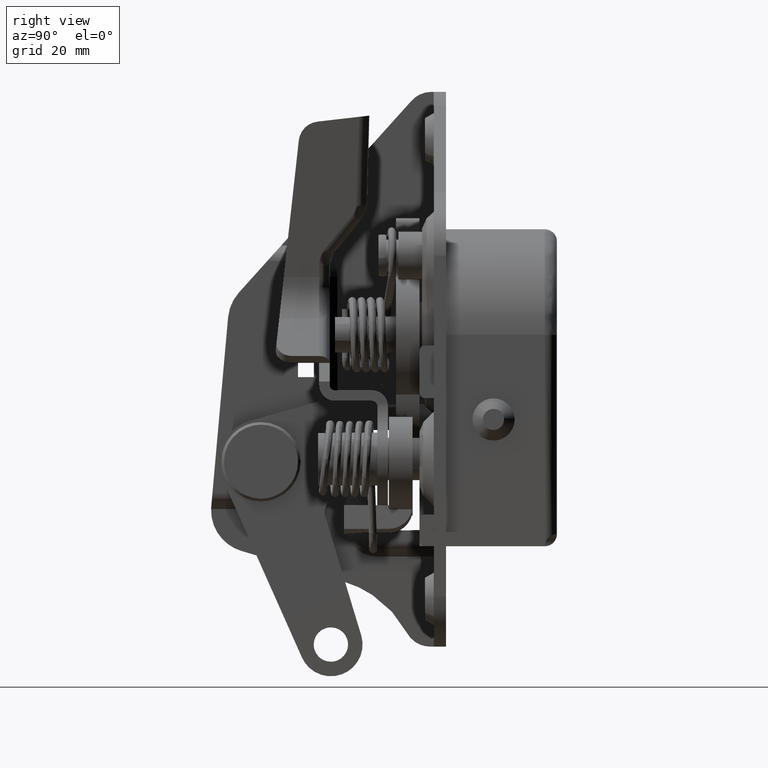
[diagram: clean part render]
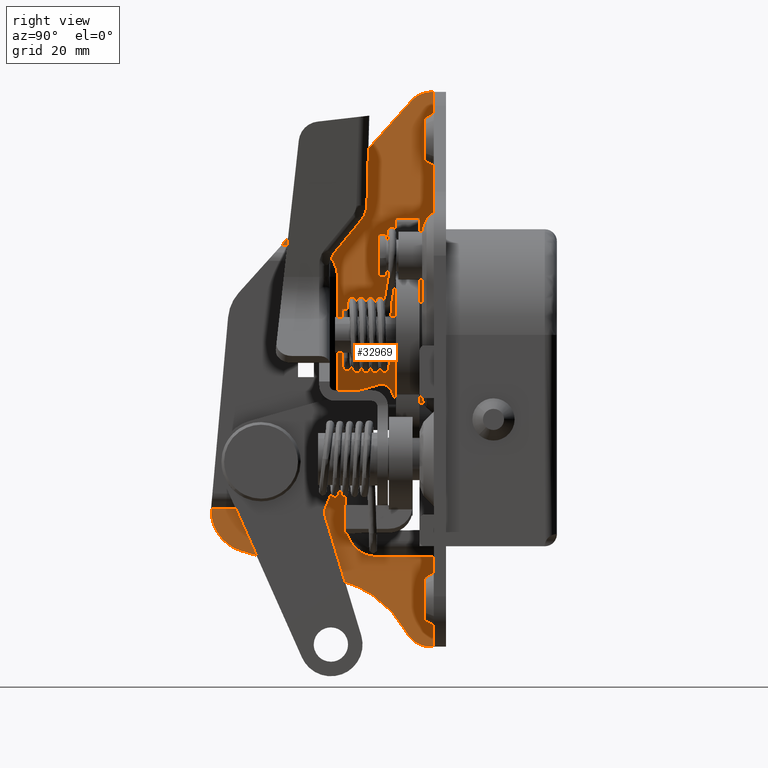
[diagram: same view with one face highlighted and labeled with its STEP entity id]
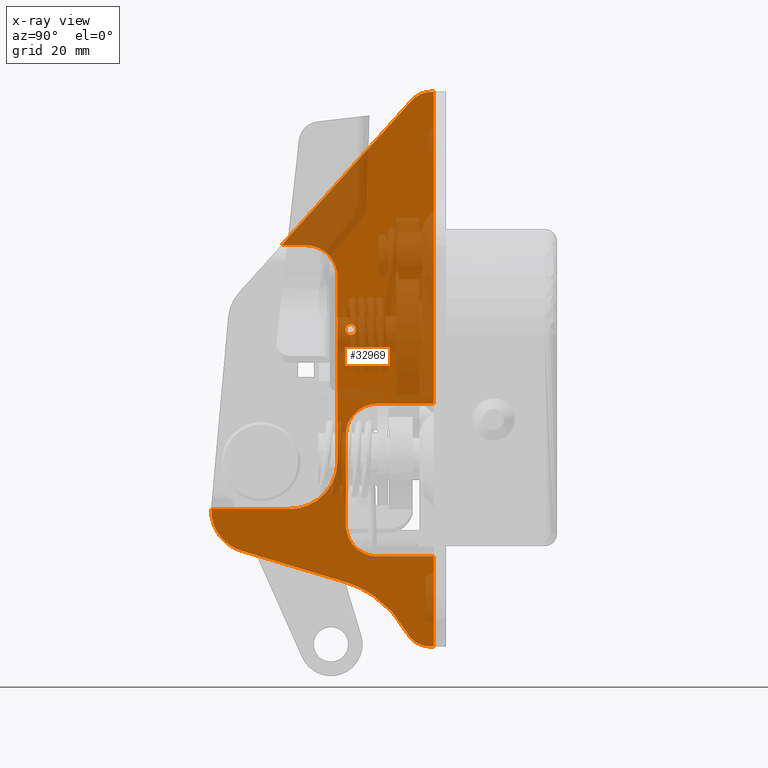
[diagram: x-ray of the same camera — body ghosted, the highlighted face saturated]
A machine part, right view. The second image highlights one B-rep face of the part: STEP entity #32969.
The next image is the same camera in x-ray: the body ghosted, the highlighted face saturated — about 41% of this face is hidden behind the body in this view.
In plain terms, the highlighted face is a freeform B-spline surface patch.
Its self-contained STEP definition (entity closure, byte-faithful):
#27227=CARTESIAN_POINT('',(2.299999999999970,17.0,26.0));
#27228=VERTEX_POINT('',#27227);
#27229=CARTESIAN_POINT('',(2.299999999983885,16.283349328471090,25.697431333616240));
#27230=VERTEX_POINT('',#27229);
#27231=CARTESIAN_POINT('',(2.299999999999970,17.0,26.0));
#27232=CARTESIAN_POINT('',(2.299999999997160,16.875137434751529,26.000108884264030));
#27233=CARTESIAN_POINT('',(2.299999999991206,16.608890082169431,25.949463115152192));
#27234=CARTESIAN_POINT('',(2.299999999986095,16.381917068576680,25.798963537486191));
#27235=CARTESIAN_POINT('',(2.299999999983885,16.283349328471090,25.697431333616240));
#27236=B_SPLINE_CURVE_WITH_KNOTS('',3,(#27231,#27232,#27233,#27234,#27235),.UNSPECIFIED.,.F.,.U.,(4,1,4),(0.000000076723321,0.374556873993050,0.799009194803175),.UNSPECIFIED.);
#27237=EDGE_CURVE('',#27228,#27230,#27236,.T.);
#27292=CARTESIAN_POINT('',(2.300000000027888,16.262722093398288,24.324409418595000));
#27293=VERTEX_POINT('',#27292);
#27299=CARTESIAN_POINT('',(2.299999999999970,17.0,24.0));
#27300=VERTEX_POINT('',#27299);
#27301=CARTESIAN_POINT('',(2.300000000027888,16.262722093398288,24.324409418595000));
#27302=CARTESIAN_POINT('',(2.300000000024140,16.361762973293299,24.216004253060419));
#27303=CARTESIAN_POINT('',(2.300000000015330,16.594207752549021,24.054467457854070));
#27304=CARTESIAN_POINT('',(2.300000000004878,16.870441349285201,23.999883512411412));
#27305=CARTESIAN_POINT('',(2.299999999999970,17.0,24.0));
#27306=B_SPLINE_CURVE_WITH_KNOTS('',3,(#27301,#27302,#27303,#27304,#27305),.UNSPECIFIED.,.F.,.U.,(4,1,4),(0.000000073293663,0.440417392098690,0.829054961482361),.UNSPECIFIED.);
#27307=EDGE_CURVE('',#27293,#27300,#27306,.T.);
#27309=CARTESIAN_POINT('',(2.299999999999970,17.999999999996358,25.000002700771301));
#27310=VERTEX_POINT('',#27309);
#27311=CARTESIAN_POINT('',(2.299999999999970,17.0,24.0));
#27312=CARTESIAN_POINT('',(2.299999999999963,17.122736333625610,23.999889343013368));
#27313=CARTESIAN_POINT('',(2.299999999999985,17.327170617699501,24.038160849404779));
#27314=CARTESIAN_POINT('',(2.299999999999963,17.625305952941570,24.197411173478500));
#27315=CARTESIAN_POINT('',(2.299999999999962,17.843834262327459,24.426898267956751));
#27316=CARTESIAN_POINT('',(2.299999999999980,17.974435839994499,24.721856909492370));
#27317=CARTESIAN_POINT('',(2.299999999999967,18.000024125343192,24.910012288192210));
#27318=CARTESIAN_POINT('',(2.299999999999970,17.999999999996358,25.000002700771301));
#27319=B_SPLINE_CURVE_WITH_KNOTS('',3,(#27311,#27312,#27313,#27314,#27315,#27316,#27317,#27318),.UNSPECIFIED.,.F.,.U.,(4,1,1,1,1,4),(0.000000278164679,0.368163901596766,0.613611931807633,1.006310286854506,1.300859443302401,1.570837266627507),.UNSPECIFIED.);
#27320=EDGE_CURVE('',#27300,#27310,#27319,.T.);
#27322=CARTESIAN_POINT('',(2.299999999999970,17.999999999996358,25.000002700771301));
#27323=CARTESIAN_POINT('',(2.299999999999974,18.000112848320640,25.122738762137288));
#27324=CARTESIAN_POINT('',(2.299999999999964,17.961843882105320,25.327180044209911));
#27325=CARTESIAN_POINT('',(2.299999999999978,17.821957639316711,25.588878455707441));
#27326=CARTESIAN_POINT('',(2.299999999999967,17.619718561186961,25.806728343205432));
#27327=CARTESIAN_POINT('',(2.299999999999969,17.335436932095920,25.963164026423929));
#27328=CARTESIAN_POINT('',(2.299999999999970,17.106352691545570,26.000039462947090));
#27329=CARTESIAN_POINT('',(2.299999999999970,17.0,26.0));
#27330=B_SPLINE_CURVE_WITH_KNOTS('',3,(#27322,#27323,#27324,#27325,#27326,#27327,#27328,#27329),.UNSPECIFIED.,.F.,.U.,(4,1,1,1,1,4),(0.000000281844217,0.368163191423545,0.613610741273622,0.883566257270461,1.251766178606309,1.570834222152832),.UNSPECIFIED.);
#27331=EDGE_CURVE('',#27310,#27228,#27330,.T.);
#27350=CARTESIAN_POINT('',(2.299999999999970,16.000000000003649,24.999997299228710));
#27351=VERTEX_POINT('',#27350);
#27352=CARTESIAN_POINT('',(2.299999999983885,16.283349328471090,25.697431333616240));
#27353=CARTESIAN_POINT('',(2.299999999986542,16.170943118919791,25.582360598269879));
#27354=CARTESIAN_POINT('',(2.299999999991806,16.037424386999191,25.353785637122002));
#27355=CARTESIAN_POINT('',(2.299999999997749,15.999987412728119,25.096465588915830));
#27356=CARTESIAN_POINT('',(2.299999999999970,16.000000000003649,24.999997299228710));
#27357=B_SPLINE_CURVE_WITH_KNOTS('',3,(#27352,#27353,#27354,#27355,#27356),.UNSPECIFIED.,.F.,.U.,(4,1,4),(0.000000064618931,0.482385127414503,0.771828755421333),.UNSPECIFIED.);
#27358=EDGE_CURVE('',#27230,#27351,#27357,.T.);
#27360=CARTESIAN_POINT('',(2.299999999999970,16.000000000003649,24.999997299228710));
#27361=CARTESIAN_POINT('',(2.300000000006355,15.999699716883249,24.845399834770920));
#27362=CARTESIAN_POINT('',(2.300000000016570,16.058541153863629,24.598444389026390));
#27363=CARTESIAN_POINT('',(2.300000000025061,16.200064603734361,24.392755436034111));
#27364=CARTESIAN_POINT('',(2.300000000027888,16.262722093398288,24.324409418595000));
#27365=B_SPLINE_CURVE_WITH_KNOTS('',3,(#27360,#27361,#27362,#27363,#27364),.UNSPECIFIED.,.F.,.U.,(4,1,4),(0.000000053008728,0.463604905297128,0.741778974606835),.UNSPECIFIED.);
#27366=EDGE_CURVE('',#27351,#27293,#27365,.T.);
#32480=CARTESIAN_POINT('',(2.299999999999970,-9.450205466200819,-8.952691193458032));
#32481=VERTEX_POINT('',#32480);
#32489=CARTESIAN_POINT('',(2.300000000000000,5.500000000000000,-8.952691193458040));
#32490=VERTEX_POINT('',#32489);
#32491=CARTESIAN_POINT('',(2.300000000000000,5.500000000000000,-8.952691193458040));
#32492=CARTESIAN_POINT('',(2.299999999999970,-9.450205466200819,-8.952691193458032));
#32493=QUASI_UNIFORM_CURVE('',1,(#32491,#32492),.UNSPECIFIED.,.F.,.U.);
#32494=EDGE_CURVE('',#32490,#32481,#32493,.T.);
#32520=CARTESIAN_POINT('',(2.300000000000000,14.452691193458120,8.471695E-014));
#32521=VERTEX_POINT('',#32520);
#32522=CARTESIAN_POINT('',(2.300000000000000,14.452691193458120,8.471695E-014));
#32523=CARTESIAN_POINT('',(2.299999999999992,14.452883619184441,-0.732458501904266));
#32524=CARTESIAN_POINT('',(2.300000000000007,14.312550159141210,-1.867634661970303));
#32525=CARTESIAN_POINT('',(2.299999999999995,13.770169696707120,-3.543980386465062));
#32526=CARTESIAN_POINT('',(2.300000000000004,13.118158995672740,-4.781962294476738));
#32527=CARTESIAN_POINT('',(2.299999999999997,12.140634888896839,-6.066824140129833));
#32528=CARTESIAN_POINT('',(2.300000000000015,11.067700438186280,-7.075804586611912));
#32529=CARTESIAN_POINT('',(2.299999999999965,9.645470770589016,-7.988682510928944));
#32530=CARTESIAN_POINT('',(2.300000000000023,7.843624729170081,-8.735190150772578));
#32531=CARTESIAN_POINT('',(2.299999999999995,6.378965177801363,-8.953052241623057));
#32532=CARTESIAN_POINT('',(2.300000000000000,5.500000000000000,-8.952691193458040));
#32533=B_SPLINE_CURVE_WITH_KNOTS('',3,(#32522,#32523,#32524,#32525,#32526,#32527,#32528,#32529,#32530,#32531,#32532),.UNSPECIFIED.,.F.,.U.,(4,1,1,1,1,1,1,1,4),(0.000000091345063,2.197323560097408,3.405869013751023,5.273619080636292,6.372272558644386,8.239997513723083,9.668260322772001,11.426153740124731,14.062942680058100),.UNSPECIFIED.);
#32534=EDGE_CURVE('',#32521,#32490,#32533,.T.);
#32551=CARTESIAN_POINT('',(2.300000000000000,14.452691193458120,35.0));
#32552=VERTEX_POINT('',#32551);
#32553=CARTESIAN_POINT('',(2.300000000000000,14.452691193458120,35.0));
#32554=CARTESIAN_POINT('',(2.300000000000000,14.452691193458120,8.471695E-014));
#32555=QUASI_UNIFORM_CURVE('',1,(#32553,#32554),.UNSPECIFIED.,.F.,.U.);
#32556=EDGE_CURVE('',#32552,#32521,#32555,.T.);
#32582=CARTESIAN_POINT('',(2.300000000000000,8.500000000000000,40.952691193458101));
#32583=VERTEX_POINT('',#32582);
#32584=CARTESIAN_POINT('',(2.300000000000000,8.500000000000000,40.952691193458101));
#32585=CARTESIAN_POINT('',(2.300000000000004,8.962657714546495,40.952792514132987));
#32586=CARTESIAN_POINT('',(2.299999999999999,9.668758386070717,40.869931609499737));
#32587=CARTESIAN_POINT('',(2.300000000000000,10.742669357838730,40.544165789031979));
#32588=CARTESIAN_POINT('',(2.300000000000001,11.751758665070639,40.044082462251502));
#32589=CARTESIAN_POINT('',(2.299999999999986,12.646898111097959,39.318539184287559));
#32590=CARTESIAN_POINT('',(2.300000000000009,13.390776246527659,38.445361373886563));
#32591=CARTESIAN_POINT('',(2.299999999999996,13.914028476301320,37.560154488678272));
#32592=CARTESIAN_POINT('',(2.300000000000002,14.342136397317050,36.363523898134837));
#32593=CARTESIAN_POINT('',(2.300000000000001,14.452860208361940,35.511368369764973));
#32594=CARTESIAN_POINT('',(2.300000000000000,14.452691193458120,35.0));
#32595=B_SPLINE_CURVE_WITH_KNOTS('',3,(#32584,#32585,#32586,#32587,#32588,#32589,#32590,#32591,#32592,#32593,#32594),.UNSPECIFIED.,.F.,.U.,(4,1,1,1,1,1,1,1,4),(0.000000123463044,1.387947787412965,2.118478463169031,3.360352761034968,4.748272259292785,5.551872501632872,6.793741497036548,7.816471655958068,9.350524131440539),.UNSPECIFIED.);
#32596=EDGE_CURVE('',#32583,#32552,#32595,.T.);
#32613=CARTESIAN_POINT('',(2.300000000000000,3.857822074112355,40.952691193458101));
#32614=VERTEX_POINT('',#32613);
#32615=CARTESIAN_POINT('',(2.300000000000000,3.857822074112355,40.952691193458101));
#32616=CARTESIAN_POINT('',(2.300000000000000,8.500000000000000,40.952691193458101));
#32617=QUASI_UNIFORM_CURVE('',1,(#32615,#32616),.UNSPECIFIED.,.F.,.U.);
#32618=EDGE_CURVE('',#32614,#32583,#32617,.T.);
#32634=CARTESIAN_POINT('',(2.300000000000000,32.700000000000003,10.952691193458120));
#32635=VERTEX_POINT('',#32634);
#32641=CARTESIAN_POINT('',(2.300000000000000,22.0,10.952691193458120));
#32642=VERTEX_POINT('',#32641);
#32643=CARTESIAN_POINT('',(2.300000000000000,22.0,10.952691193458120));
#32644=CARTESIAN_POINT('',(2.300000000000000,32.700000000000003,10.952691193458120));
#32645=QUASI_UNIFORM_CURVE('',1,(#32643,#32644),.UNSPECIFIED.,.F.,.U.);
#32646=EDGE_CURVE('',#32642,#32635,#32645,.T.);
#32672=CARTESIAN_POINT('',(2.300000000000000,16.047308806541899,5.0));
#32673=VERTEX_POINT('',#32672);
#32674=CARTESIAN_POINT('',(2.300000000000000,16.047308806541899,5.0));
#32675=CARTESIAN_POINT('',(2.299999999999999,16.047285205004592,5.365247926158874));
#32676=CARTESIAN_POINT('',(2.299999999999999,16.121440009057601,6.168811817258397));
#32677=CARTESIAN_POINT('',(2.300000000000000,16.448581009048610,7.247225922557664));
#32678=CARTESIAN_POINT('',(2.299999999999989,17.017715541164780,8.327925342596554));
#32679=CARTESIAN_POINT('',(2.300000000000018,17.774052229049730,9.261206328256160));
#32680=CARTESIAN_POINT('',(2.299999999999965,18.657677534130251,9.959459868772722));
#32681=CARTESIAN_POINT('',(2.300000000000031,19.662197121009420,10.512423676356550));
#32682=CARTESIAN_POINT('',(2.299999999999982,20.733775017324120,10.866404008232330));
#32683=CARTESIAN_POINT('',(2.300000000000004,21.610403449548080,10.952722371612380));
#32684=CARTESIAN_POINT('',(2.300000000000000,22.0,10.952691193458120));
#32685=B_SPLINE_CURVE_WITH_KNOTS('',3,(#32674,#32675,#32676,#32677,#32678,#32679,#32680,#32681,#32682,#32683,#32684),.UNSPECIFIED.,.F.,.U.,(4,1,1,1,1,1,1,1,4),(0.000000123470894,1.095755485881645,2.410684327598800,3.360352761038337,4.748272259294761,5.990173454359868,6.720685162597633,8.181715368752407,9.350524131440533),.UNSPECIFIED.);
#32686=EDGE_CURVE('',#32673,#32642,#32685,.T.);
#32703=CARTESIAN_POINT('',(2.300000000000000,16.047308806541899,-12.0));
#32704=VERTEX_POINT('',#32703);
#32705=CARTESIAN_POINT('',(2.300000000000000,16.047308806541899,-12.0));
#32706=CARTESIAN_POINT('',(2.300000000000000,16.047308806541899,5.0));
#32707=QUASI_UNIFORM_CURVE('',1,(#32705,#32706),.UNSPECIFIED.,.F.,.U.);
#32708=EDGE_CURVE('',#32704,#32673,#32707,.T.);
#32734=CARTESIAN_POINT('',(2.300000000000000,22.0,-17.952691193458101));
#32735=VERTEX_POINT('',#32734);
#32736=CARTESIAN_POINT('',(2.300000000000000,22.0,-17.952691193458101));
#32737=CARTESIAN_POINT('',(2.300000000000000,21.634749118441601,-17.952724752475710));
#32738=CARTESIAN_POINT('',(2.300000000000001,20.879898801779490,-17.883016709020541));
#32739=CARTESIAN_POINT('',(2.300000000000007,19.916422546005801,-17.603621520092769));
#32740=CARTESIAN_POINT('',(2.299999999999988,19.012202960934690,-17.175934155681500));
#32741=CARTESIAN_POINT('',(2.300000000000007,18.161732315490760,-16.600152255128108));
#32742=CARTESIAN_POINT('',(2.299999999999996,17.421920342799151,-15.851169795087570));
#32743=CARTESIAN_POINT('',(2.299999999999970,16.795084332263240,-14.949372656584339));
#32744=CARTESIAN_POINT('',(2.300000000000054,16.226681235962779,-13.728642271425141));
#32745=CARTESIAN_POINT('',(2.299999999999951,16.046892183450570,-12.657507259688790));
#32746=CARTESIAN_POINT('',(2.300000000000000,16.047308806541899,-12.0));
#32747=B_SPLINE_CURVE_WITH_KNOTS('',3,(#32736,#32737,#32738,#32739,#32740,#32741,#32742,#32743,#32744,#32745,#32746),.UNSPECIFIED.,.F.,.U.,(4,1,1,1,1,1,1,1,4),(0.000000123461952,1.095755485874078,2.264579772262074,2.995099522537981,4.090890041220280,5.332722137895943,6.136270505482694,7.378157325394110,9.350524131440508),.UNSPECIFIED.);
#32748=EDGE_CURVE('',#32735,#32704,#32747,.T.);
#32765=CARTESIAN_POINT('',(2.300000000000000,32.700000000000003,-17.952691193458101));
#32766=VERTEX_POINT('',#32765);
#32767=CARTESIAN_POINT('',(2.300000000000000,32.700000000000003,-17.952691193458101));
#32768=CARTESIAN_POINT('',(2.300000000000000,22.0,-17.952691193458101));
#32769=QUASI_UNIFORM_CURVE('',1,(#32767,#32768),.UNSPECIFIED.,.F.,.U.);
#32770=EDGE_CURVE('',#32766,#32735,#32769,.T.);
#32855=CARTESIAN_POINT('',(2.300000000000000,-11.559506742886240,-40.244749796489629));
#32856=CARTESIAN_POINT('',(2.300000000000000,34.805589282479943,-40.244749796489629));
#32857=CARTESIAN_POINT('',(2.300000000000000,-11.559506742886240,75.244752612809094));
#32858=CARTESIAN_POINT('',(2.300000000000000,34.805589282479943,75.244752612809094));
#32859=B_SPLINE_SURFACE_WITH_KNOTS('',1,1,((#32855,#32857),(#32856,#32858)),.UNSPECIFIED.,.F.,.F.,.U.,(2,2),(2,2),(0.0,46.365096025366178),(0.0,115.489502409298690),.UNSPECIFIED.);
#32860=ORIENTED_EDGE('',*,*,#32686,.T.);
#32861=ORIENTED_EDGE('',*,*,#32646,.T.);
#32862=CARTESIAN_POINT('',(2.300000000000000,32.700000000000003,70.0));
#32863=VERTEX_POINT('',#32862);
#32864=CARTESIAN_POINT('',(2.300000000000000,32.700000000000003,10.952691193458120));
#32865=CARTESIAN_POINT('',(2.300000000000000,32.700000000000003,70.0));
#32866=QUASI_UNIFORM_CURVE('',1,(#32864,#32865),.UNSPECIFIED.,.F.,.U.);
#32867=EDGE_CURVE('',#32635,#32863,#32866,.T.);
#32868=ORIENTED_EDGE('',*,*,#32867,.T.);
#32869=CARTESIAN_POINT('',(2.299999999999970,32.227212023536850,70.0));
#32870=VERTEX_POINT('',#32869);
#32871=CARTESIAN_POINT('',(2.300000000000000,32.700000000000003,70.0));
#32872=CARTESIAN_POINT('',(2.299999999999970,32.227212023536850,70.0));
#32873=QUASI_UNIFORM_CURVE('',1,(#32871,#32872),.UNSPECIFIED.,.F.,.U.);
#32874=EDGE_CURVE('',#32863,#32870,#32873,.T.);
#32875=ORIENTED_EDGE('',*,*,#32874,.T.);
#32876=CARTESIAN_POINT('',(2.299999999999970,28.510741292300949,68.344823658112190));
#32877=VERTEX_POINT('',#32876);
#32878=CARTESIAN_POINT('',(2.299999999999970,32.227212023536850,70.0));
#32879=CARTESIAN_POINT('',(2.299999999999955,31.637948975597169,70.000443821033770));
#32880=CARTESIAN_POINT('',(2.300000000000014,30.634410390709458,69.820447603389795));
#32881=CARTESIAN_POINT('',(2.299999999999914,29.384716551899700,69.172950804886810));
#32882=CARTESIAN_POINT('',(2.300000000000010,28.773452446812112,68.636853776732835));
#32883=CARTESIAN_POINT('',(2.299999999999970,28.510741292300949,68.344823658112190));
#32884=B_SPLINE_CURVE_WITH_KNOTS('',3,(#32878,#32879,#32880,#32881,#32882,#32883),.UNSPECIFIED.,.F.,.U.,(4,1,1,4),(0.000000042646898,1.767643953155662,3.011514816335939,4.189936052756754),.UNSPECIFIED.);
#32885=EDGE_CURVE('',#32870,#32877,#32884,.T.);
#32886=ORIENTED_EDGE('',*,*,#32885,.T.);
#32887=CARTESIAN_POINT('',(2.299999999999970,28.510741292300949,68.344823658112190));
#32888=CARTESIAN_POINT('',(2.300000000000000,3.857822074112355,40.952691193458101));
#32889=QUASI_UNIFORM_CURVE('',1,(#32887,#32888),.UNSPECIFIED.,.F.,.U.);
#32890=EDGE_CURVE('',#32877,#32614,#32889,.T.);
#32891=ORIENTED_EDGE('',*,*,#32890,.T.);
#32892=ORIENTED_EDGE('',*,*,#32618,.T.);
#32893=ORIENTED_EDGE('',*,*,#32596,.T.);
#32894=ORIENTED_EDGE('',*,*,#32556,.T.);
#32895=ORIENTED_EDGE('',*,*,#32534,.T.);
#32896=ORIENTED_EDGE('',*,*,#32494,.T.);
#32897=CARTESIAN_POINT('',(2.299999999999970,-3.752842376635540,-16.875047278926100));
#32898=VERTEX_POINT('',#32897);
#32899=CARTESIAN_POINT('',(2.299999999999970,-9.450205466200819,-8.952691193458032));
#32900=CARTESIAN_POINT('',(2.299999999999973,-9.467105035917369,-9.471688146844379));
#32901=CARTESIAN_POINT('',(2.299999999999968,-9.397590489428392,-10.540366085179370));
#32902=CARTESIAN_POINT('',(2.299999999999969,-8.959141310041261,-12.157924255592610));
#32903=CARTESIAN_POINT('',(2.299999999999970,-8.260577291357899,-13.499689132300860));
#32904=CARTESIAN_POINT('',(2.299999999999969,-7.371210357022950,-14.647095339988709));
#32905=CARTESIAN_POINT('',(2.299999999999944,-6.369585854016195,-15.585196415070930));
#32906=CARTESIAN_POINT('',(2.299999999999880,-5.115574654249413,-16.376586438600501));
#32907=CARTESIAN_POINT('',(2.300000000000118,-4.197878164604866,-16.741597592644428));
#32908=CARTESIAN_POINT('',(2.299999999999970,-3.752842376635540,-16.875047278926100));
#32909=B_SPLINE_CURVE_WITH_KNOTS('',3,(#32899,#32900,#32901,#32902,#32903,#32904,#32905,#32906,#32907,#32908),.UNSPECIFIED.,.F.,.U.,(4,1,1,1,1,1,1,4),(0.000000083555223,1.557816430125174,3.197644376533220,5.001444843081019,6.067290083316820,7.543152239611359,9.100981790110835,10.494821834781920),.UNSPECIFIED.);
#32910=EDGE_CURVE('',#32481,#32898,#32909,.T.);
#32911=ORIENTED_EDGE('',*,*,#32910,.T.);
#32912=CARTESIAN_POINT('',(2.299999999999970,15.746452421874899,-22.723835754643648));
#32913=VERTEX_POINT('',#32912);
#32914=CARTESIAN_POINT('',(2.299999999999970,-3.752842376635540,-16.875047278926100));
#32915=CARTESIAN_POINT('',(2.299999999999970,15.746452421874899,-22.723835754643648));
#32916=QUASI_UNIFORM_CURVE('',1,(#32914,#32915),.UNSPECIFIED.,.F.,.U.);
#32917=EDGE_CURVE('',#32898,#32913,#32916,.T.);
#32918=ORIENTED_EDGE('',*,*,#32917,.T.);
#32919=CARTESIAN_POINT('',(2.299999999999970,27.597679200225301,-32.376126364626053));
#32920=VERTEX_POINT('',#32919);
#32921=CARTESIAN_POINT('',(2.299999999999970,27.597679200225301,-32.376126364626053));
#32922=CARTESIAN_POINT('',(2.299999999999964,27.015503887419658,-31.297999194667600));
#32923=CARTESIAN_POINT('',(2.299999999999980,25.970206978026020,-29.727382978095569));
#32924=CARTESIAN_POINT('',(2.299999999999957,23.956761808274148,-27.468519438994640));
#32925=CARTESIAN_POINT('',(2.299999999999990,22.057230502401591,-25.842381540848230));
#32926=CARTESIAN_POINT('',(2.299999999999932,19.234077647591619,-24.032230535202071));
#32927=CARTESIAN_POINT('',(2.299999999999994,17.194025428263121,-23.157706923353668));
#32928=CARTESIAN_POINT('',(2.299999999999970,15.746452421874899,-22.723835754643648));
#32929=B_SPLINE_CURVE_WITH_KNOTS('',3,(#32921,#32922,#32923,#32924,#32925,#32926,#32927,#32928),.UNSPECIFIED.,.F.,.U.,(4,1,1,1,1,4),(0.000000018597770,3.675786163481297,5.636208980521856,9.066932852458480,11.149881513092851,15.683355230144070),.UNSPECIFIED.);
#32930=EDGE_CURVE('',#32920,#32913,#32929,.T.);
#32931=ORIENTED_EDGE('',*,*,#32930,.F.);
#32932=CARTESIAN_POINT('',(2.299999999999970,31.997000000000000,-35.0));
#32933=VERTEX_POINT('',#32932);
#32934=CARTESIAN_POINT('',(2.299999999999970,27.597679200225301,-32.376126364626053));
#32935=CARTESIAN_POINT('',(2.299999999999969,27.850357416422831,-32.844555760595853));
#32936=CARTESIAN_POINT('',(2.299999999999970,28.351759252042669,-33.496691083622871));
#32937=CARTESIAN_POINT('',(2.299999999999973,29.297534415739989,-34.249349918645677));
#32938=CARTESIAN_POINT('',(2.299999999999961,30.428702043389279,-34.824970240064282));
#32939=CARTESIAN_POINT('',(2.299999999999974,31.408737476887062,-35.000414573552213));
#32940=CARTESIAN_POINT('',(2.299999999999970,31.997000000000000,-35.0));
#32941=B_SPLINE_CURVE_WITH_KNOTS('',3,(#32934,#32935,#32936,#32937,#32938,#32939,#32940),.UNSPECIFIED.,.F.,.U.,(4,1,1,1,4),(0.000000056120015,1.596578865770828,2.436907447740727,3.613297911995456,5.377944687867363),.UNSPECIFIED.);
#32942=EDGE_CURVE('',#32920,#32933,#32941,.T.);
#32943=ORIENTED_EDGE('',*,*,#32942,.T.);
#32944=CARTESIAN_POINT('',(2.300000000000000,32.700000000000003,-35.0));
#32945=VERTEX_POINT('',#32944);
#32946=CARTESIAN_POINT('',(2.299999999999970,31.997000000000000,-35.0));
#32947=CARTESIAN_POINT('',(2.300000000000000,32.700000000000003,-35.0));
#32948=QUASI_UNIFORM_CURVE('',1,(#32946,#32947),.UNSPECIFIED.,.F.,.U.);
#32949=EDGE_CURVE('',#32933,#32945,#32948,.T.);
#32950=ORIENTED_EDGE('',*,*,#32949,.T.);
#32951=CARTESIAN_POINT('',(2.300000000000000,32.700000000000003,-35.0));
#32952=CARTESIAN_POINT('',(2.300000000000000,32.700000000000003,-17.952691193458101));
#32953=QUASI_UNIFORM_CURVE('',1,(#32951,#32952),.UNSPECIFIED.,.F.,.U.);
#32954=EDGE_CURVE('',#32945,#32766,#32953,.T.);
#32955=ORIENTED_EDGE('',*,*,#32954,.T.);
#32956=ORIENTED_EDGE('',*,*,#32770,.T.);
#32957=ORIENTED_EDGE('',*,*,#32748,.T.);
#32958=ORIENTED_EDGE('',*,*,#32708,.T.);
#32959=EDGE_LOOP('',(#32860,#32861,#32868,#32875,#32886,#32891,#32892,#32893,#32894,#32895,#32896,#32911,#32918,#32931,#32943,#32950,#32955,#32956,#32957,#32958));
#32960=FACE_OUTER_BOUND('',#32959,.T.);
#32961=ORIENTED_EDGE('',*,*,#27320,.F.);
#32962=ORIENTED_EDGE('',*,*,#27307,.F.);
#32963=ORIENTED_EDGE('',*,*,#27366,.F.);
#32964=ORIENTED_EDGE('',*,*,#27358,.F.);
#32965=ORIENTED_EDGE('',*,*,#27237,.F.);
#32966=ORIENTED_EDGE('',*,*,#27331,.F.);
#32967=EDGE_LOOP('',(#32961,#32962,#32963,#32964,#32965,#32966));
#32968=FACE_BOUND('',#32967,.T.);
#32969=ADVANCED_FACE('',(#32960,#32968),#32859,.T.);